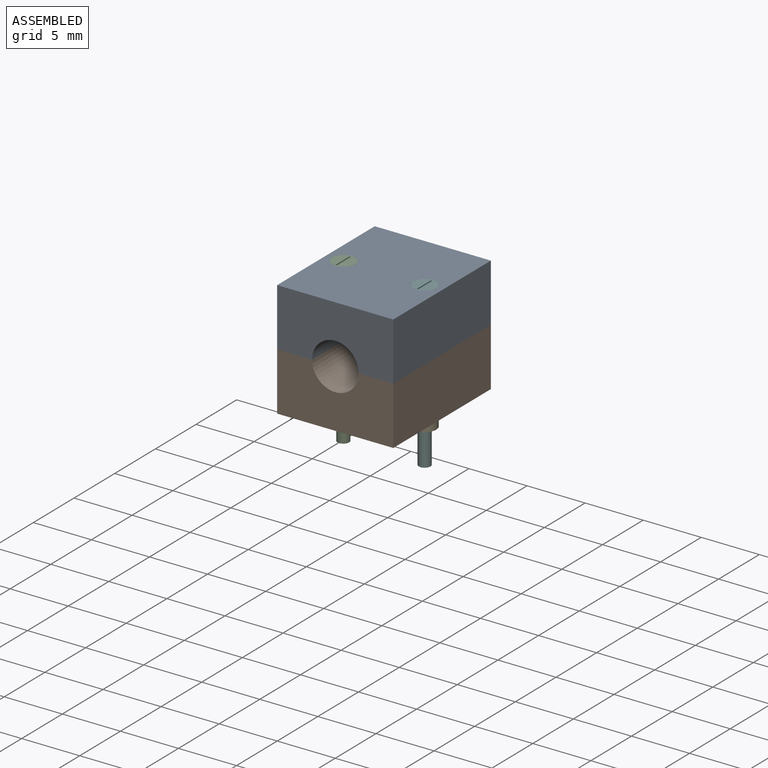
[diagram: assembled view]
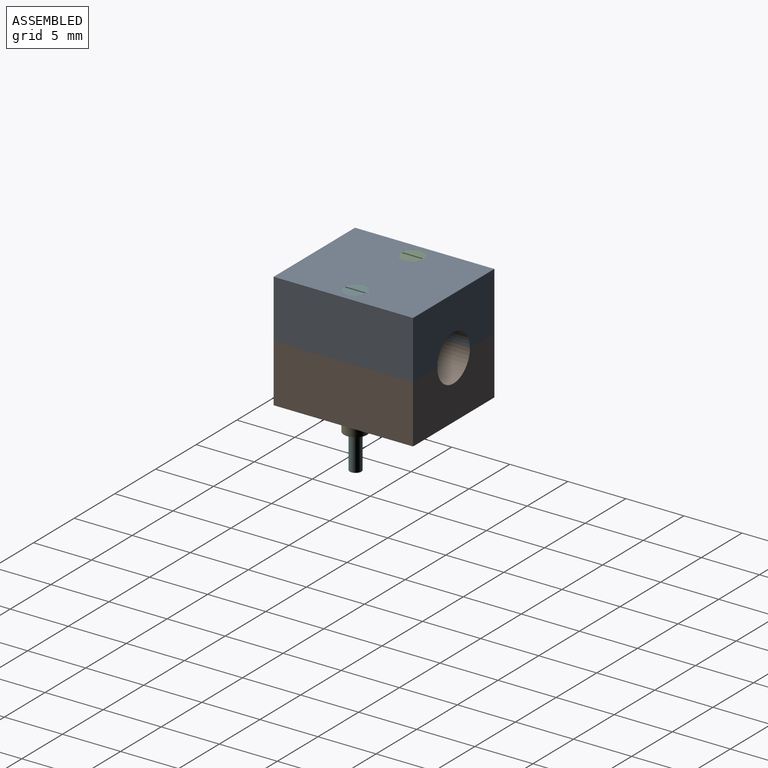
[diagram: assembled view, second angle]
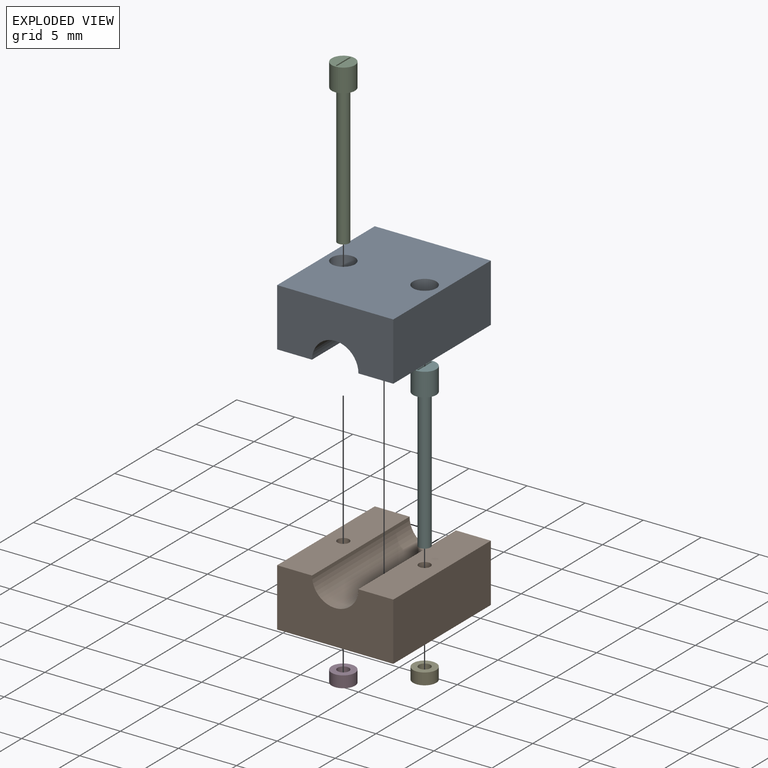
[diagram: exploded view]
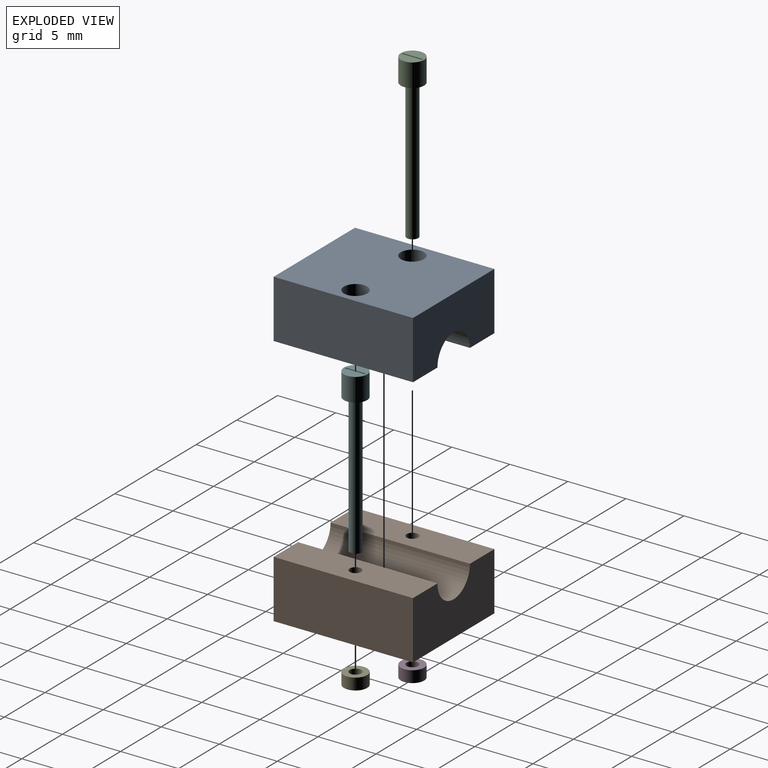
[diagram: exploded view, second angle]
ASSEMBLY  parts=6 mates=5
PART A: 14 faces, bbox 10x12x5 mm
  f0: cylinder r=0.5mm len=3mm, axis (0,0,1), area 9.4mm2, adj f7,f12
  f1: cylinder r=0.5mm len=3mm, axis (0,0,1), area 9.4mm2, adj f2,f10
  f2: plane 12x3mm, normal (0,0,1), area 35.2mm2, adj f1,f3,f4,f5,f9
  f3: plane 10x5mm, normal (0,-1,0), area 43.7mm2, adj f2,f4,f6,f7,f8,f9
  f4: plane 12x5mm, normal (1,0,0), area 60mm2, adj f2,f3,f5,f8
  f5: plane 10x5mm, normal (0,1,0), area 43.7mm2, adj f2,f4,f6,f7,f8,f9
  f6: plane 12x5mm, normal (-1,0,0), area 60mm2, adj f3,f5,f7,f8
  f7: plane 12x3mm, normal (0,0,1), area 35.2mm2, adj f0,f3,f5,f6,f9
  f8: plane 12x10mm, normal (0,0,-1), area 113.7mm2, adj f3,f4,f5,f6,f11,f13
  f9: cylinder r=2mm len=12mm, axis (0,-1,0), area 75.4mm2, adj f2,f3,f5,f7
  f10: plane 2.01x2.01mm, normal (0,0,-1), area 2.4mm2, adj f1,f11
  f11: cylinder r=1.01mm len=2.01mm, axis (0,0,-1), area 12.6mm2, adj f8,f10
  f12: plane 2.01x2.01mm, normal (0,0,-1), area 2.4mm2, adj f0,f13
  f13: cylinder r=1.01mm len=2.01mm, axis (0,0,-1), area 12.6mm2, adj f8,f12
PART B: 10 faces, bbox 10x12x5 mm
  f0: plane 12x3mm, normal (0,0,1), area 35.2mm2, adj f1,f2,f3,f7,f9
  f1: plane 10x5mm, normal (0,-1,0), area 43.7mm2, adj f0,f2,f4,f5,f6,f7
  f2: plane 12x5mm, normal (1,0,0), area 60mm2, adj f0,f1,f3,f6
  f3: plane 10x5mm, normal (0,1,0), area 43.7mm2, adj f0,f2,f4,f5,f6,f7
  f4: plane 12x5mm, normal (-1,0,0), area 60mm2, adj f1,f3,f5,f6
  f5: plane 12x3mm, normal (0,0,1), area 35.2mm2, adj f1,f3,f4,f7,f8
  f6: plane 12x10mm, normal (0,0,-1), area 118.4mm2, adj f1,f2,f3,f4,f8,f9
  f7: cylinder r=2mm len=12mm, axis (0,-1,0), area 75.4mm2, adj f0,f1,f3,f5
  f8: cylinder r=0.5mm len=5mm, axis (0,0,1), area 15.7mm2, adj f5,f6
  f9: cylinder r=0.5mm len=5mm, axis (0,0,1), area 15.7mm2, adj f0,f6
PART C: 10 faces, bbox 2x2x14 mm
  f0: cylinder r=0.5mm len=12mm, axis (0,0,-1), area 37.7mm2, adj f1,f4
  f1: plane 1x1mm, normal (0,0,-1), area 0.8mm2, adj f0
  f2: cylinder r=1mm len=2mm, axis (0,0,-1), area 12.6mm2, adj f3,f4
  f3: plane 2x2mm, normal (0,0,1), area 2.9mm2, adj f2,f5,f6,f7,f8
  f4: plane 2x2mm, normal (0,0,-1), area 2.4mm2, adj f0,f2
  f5: plane 1.71x0.1mm, normal (-1,0,0), area 0.2mm2, adj f3,f6,f8,f9
  f6: plane 0.14x0.1mm, normal (0,-1,0), area 0mm2, adj f3,f5,f7,f9
  f7: plane 1.71x0.1mm, normal (1,0,0), area 0.2mm2, adj f3,f6,f8,f9
  f8: plane 0.14x0.1mm, normal (0,1,0), area 0mm2, adj f3,f5,f7,f9
  f9: plane 1.71x0.14mm, normal (0,0,1), area 0.2mm2, adj f5,f6,f7,f8
PART D: 4 faces, bbox 2x1x2 mm
  f0: cylinder r=0.5mm len=1mm, axis (0,1,0), area 3.1mm2, adj f2,f3
  f1: cylinder r=1mm len=2mm, axis (0,1,0), area 6.3mm2, adj f2,f3
  f2: plane 2x2mm, normal (0,-1,0), area 2.4mm2, adj f0,f1
  f3: plane 2x2mm, normal (0,1,0), area 2.4mm2, adj f0,f1
PART E: same geometry as D
PART F: same geometry as C
PLACE A rot(axis=(0,1,0),180deg) t=(-2.91,-4.85,16.81)mm
PLACE B t=(-2.91,-4.85,-17.99)mm
PLACE C t=(-13.15,-4.85,2.81)mm
PLACE D rot(axis=(-1,0,0),90deg) t=(-6.41,-4.85,5.81)mm
PLACE E rot(axis=(-1,0,0),90deg) t=(0.59,-4.85,5.81)mm
PLACE F t=(-6.15,-4.85,2.81)mm
MATE fastened E.f1 <-> B.f9  axis (0,0,1) through (0.59,-4.85,6.81)mm
MATE fastened B.f9 <-> A.f0  axis (0,0,1) through (0.59,-4.85,11.81)mm
MATE fastened F.f0 <-> A.f0  axis (0,0,-1) through (0.59,-4.85,14.81)mm
MATE fastened D.f1 <-> B.f8  axis (0,0,1) through (-6.41,-4.85,6.81)mm
MATE fastened A.f1 <-> C.f0  axis (0,0,1) through (-6.41,-4.85,14.81)mm
